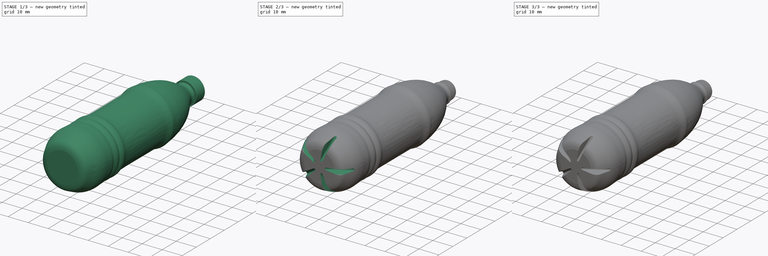
[diagram: build sequence overview — one tinted view per stage of 3, left to right]
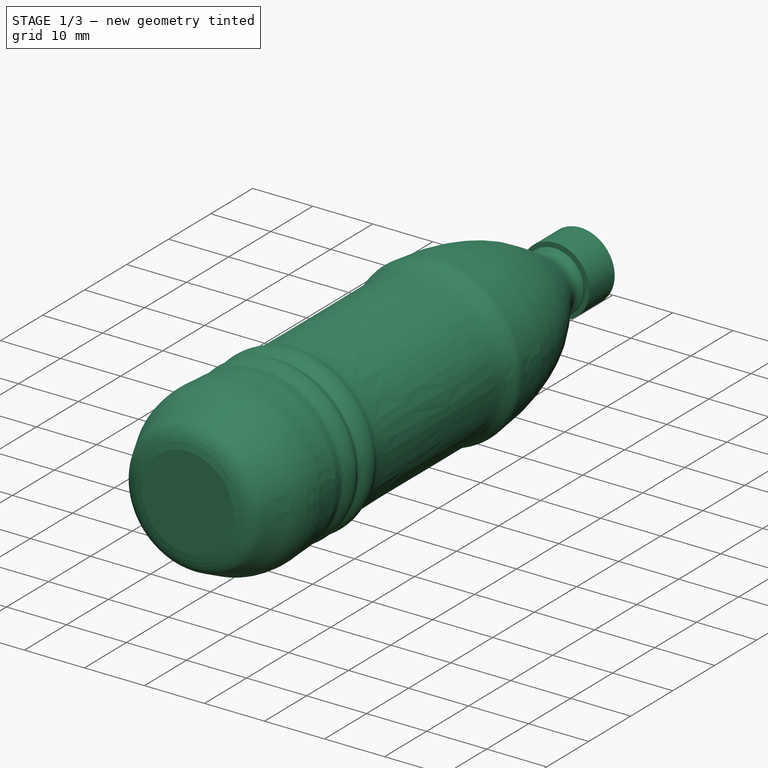
[diagram: stage 1 of 3 — iso view after this stage's code; geometry added in this stage tinted green]
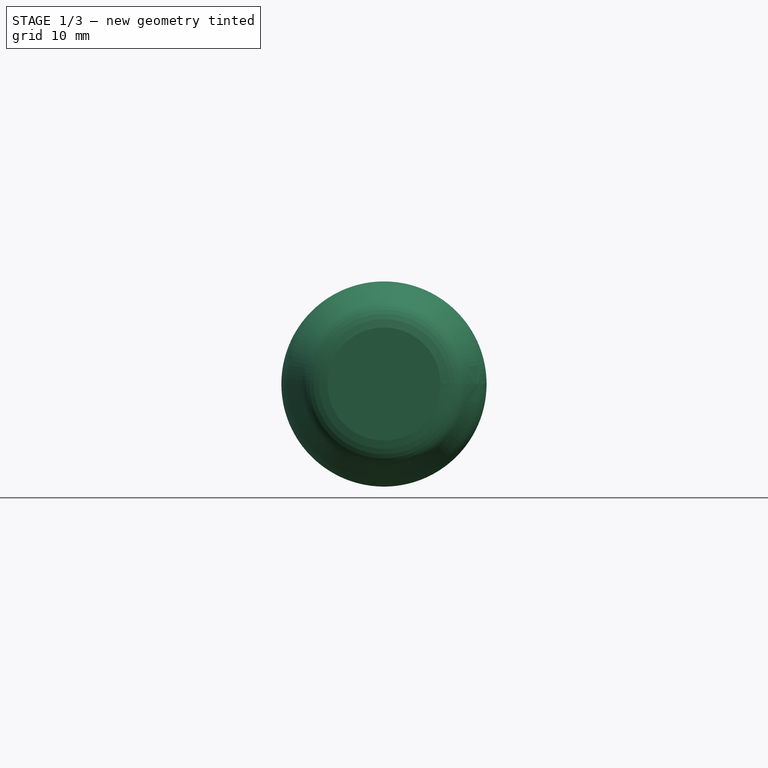
[diagram: stage 1 of 3 — front view after this stage's code; geometry added in this stage tinted green]
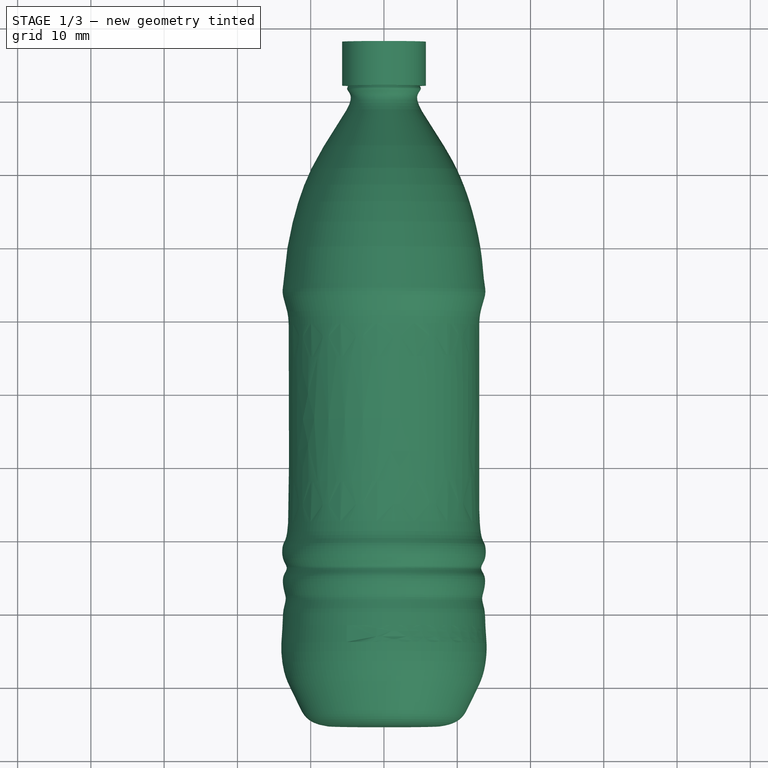
[diagram: stage 1 of 3 — top view after this stage's code; geometry added in this stage tinted green]
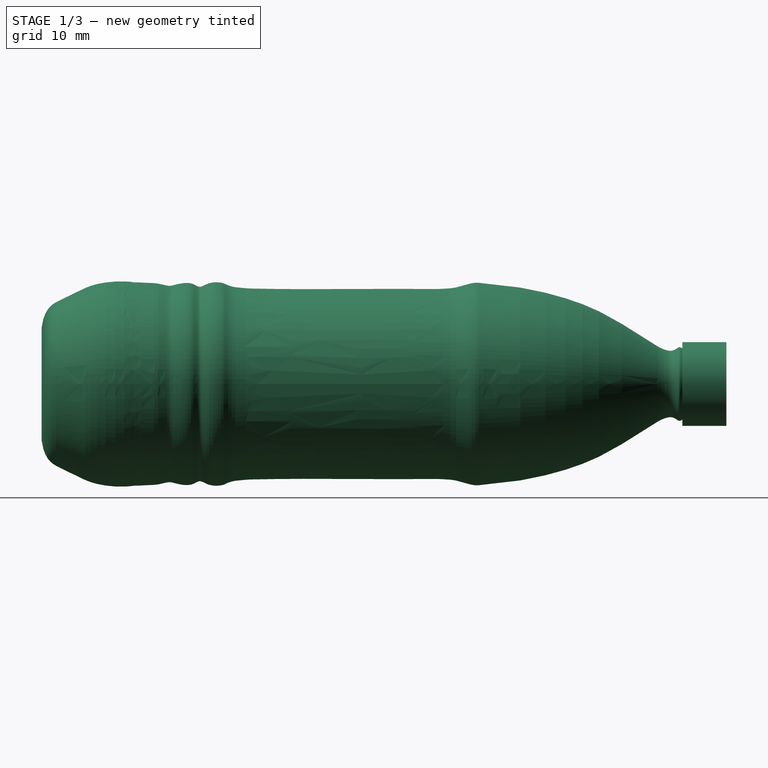
[diagram: stage 1 of 3 — right view after this stage's code; geometry added in this stage tinted green]
FCSTD DOCUMENT  (FreeCAD 0.21R33771 (Git))
Label: butilka2
License: All rights reserved
LicenseURL: http://en.wikipedia.org/wiki/All_rights_reserved
objects: Sketcher::SketchObject×4, PartDesign::Body×2, PartDesign::Revolution×1, PartDesign::Plane×1, PartDesign::SubtractivePipe×1, PartDesign::PolarPattern×1, Part::FeaturePython×1, Part::Cut×1, PartDesign::FeatureBase×1, PartDesign::Pocket×1
note: 17 computed .brp shape members not serialized (recipe doc carries the construction recipe); baked Part::Feature solids carry a one-line shape summary decoded from their .brp

FEATURE [Sketcher::SketchObject] Sketch001
  FullyConstrained = false
  MapMode = 5
  Support = -> [XY_Plane]
  sketch-geometry (65):
    g0: BSplineCurve PolesCount=32 KnotsCount=30 Degree=3 IsPeriodic=0
    g1: GeomPoint X=7.71037 Y=-45.4541 Z=0
    g2: LineSegment StartX=7.71037 StartY=-45.4541 StartZ=0 EndX=0 EndY=-45.4541 EndZ=0
    g3: LineSegment StartX=0 StartY=-45.4541 StartZ=0 EndX=0 EndY=46.9016 EndZ=0
    g4-g35: Circle x32 (B-spline internal-alignment scaffolding for g0; pole/knot coordinates omitted)
    g36-g64: GeomPoint x29 (B-spline internal-alignment scaffolding for g0; pole/knot coordinates omitted)
  constraints (73):
    c: PointOnObject(g0,g-2)
    c: InternalAlignment(g1,g0)
    c: Coincident(g2,g1)
    c: Horizontal(g2)
    c: Coincident(g3,g2)
    c: Coincident(g3,g0)
    c: Vertical(g3)
    c: PointOnObject(g0,g2)
    c: InternalAlignment(g4,g0)
    c: Weight(g4) = 1
    c: InternalAlignment(g5,g0)
    c: Equal(g5,g4)
    c: InternalAlignment(g6,g0)
    c: Equal(g6,g4)
    c: InternalAlignment(g7,g0)
    c: Equal(g7,g4)
    c: InternalAlignment(g8,g0)
    c: Equal(g8,g4)
    c: InternalAlignment(g9,g0)
    c: Equal(g9,g4)
    c: InternalAlignment(g10,g0)
    c: Equal(g10,g4)
    c: InternalAlignment(g11,g0)
    c: Equal(g11,g4)
    c: InternalAlignment(g12,g0)
    c: Equal(g12,g4)
    c: InternalAlignment(g13,g0)
    c: Equal(g13,g4)
    c: InternalAlignment(g14,g0)
    c: Equal(g14,g4)
    c: InternalAlignment(g15,g0)
    c: Equal(g15,g4)
    c: InternalAlignment(g16,g0)
    c: Equal(g16,g4)
    c: InternalAlignment(g17,g0)
    c: Equal(g17,g4)
    c: InternalAlignment(g18,g0)
    c: Equal(g18,g4)
    c: InternalAlignment(g19,g0)
    c: Equal(g19,g4)
    c: InternalAlignment(g20,g0)
    c: Equal(g20,g4)
    c: InternalAlignment(g21,g0)
    c: Equal(g21,g4)
    c: InternalAlignment(g22,g0)
    c: Equal(g22,g4)
    c: InternalAlignment(g23,g0)
    c: Equal(g23,g4)
    c: InternalAlignment(g24,g0)
    c: Equal(g24,g4)
    c: InternalAlignment(g25,g0)
    c: Equal(g25,g4)
    c: InternalAlignment(g26,g0)
    c: Equal(g26,g4)
    c: InternalAlignment(g27,g0)
    c: Equal(g27,g4)
    c: InternalAlignment(g28,g0)
    c: Equal(g28,g4)
    c: InternalAlignment(g29,g0)
    c: Equal(g29,g4)
    c: InternalAlignment(g30,g0)
    c: Equal(g30,g4)
    c: InternalAlignment(g31,g0)
    c: Equal(g31,g4)
    c: InternalAlignment(g32,g0)
    c: Equal(g32,g4)
    c: InternalAlignment(g33,g0)
    c: Equal(g33,g4)
    c: InternalAlignment(g34,g0)
    c: Equal(g34,g4)
    c: InternalAlignment(g35,g0)
    c: Equal(g35,g4)
    c: InternalAlignment(g36-g64 -> g0) x29
FEATURE [PartDesign::Revolution] Revolution
  Angle = 360
  Axis = (0,1,0)
  Base = (0,0,0)
  Profile = -> Sketch001
  ReferenceAxis = -> Sketch001 [V_Axis]
  Refine = true
  Reversed = true
FEATURE [PartDesign::Body] Body
  Group = -> [Sketch001,Revolution,Sketch,DatumPlane,Sketch002,SubtractivePipe,PolarPattern]
  Origin = -> Origin
  Tip = -> PolarPattern
FEATURE [Part::FeaturePython] ScrewDie  label="3/8inx6-ScrewDie"  # Fasteners workbench fastener (typed FeaturePython)
  Placement = pos=(0,42,0) rot=(1,0,0;1.5708rad)
  diameter = 12
  diameterCustom = 6
  invert = false
  leftHanded = false
  length = 6
  matchOuter = false
  offset = 0
  pitchCustom = 1
  thread = true
  type = 1
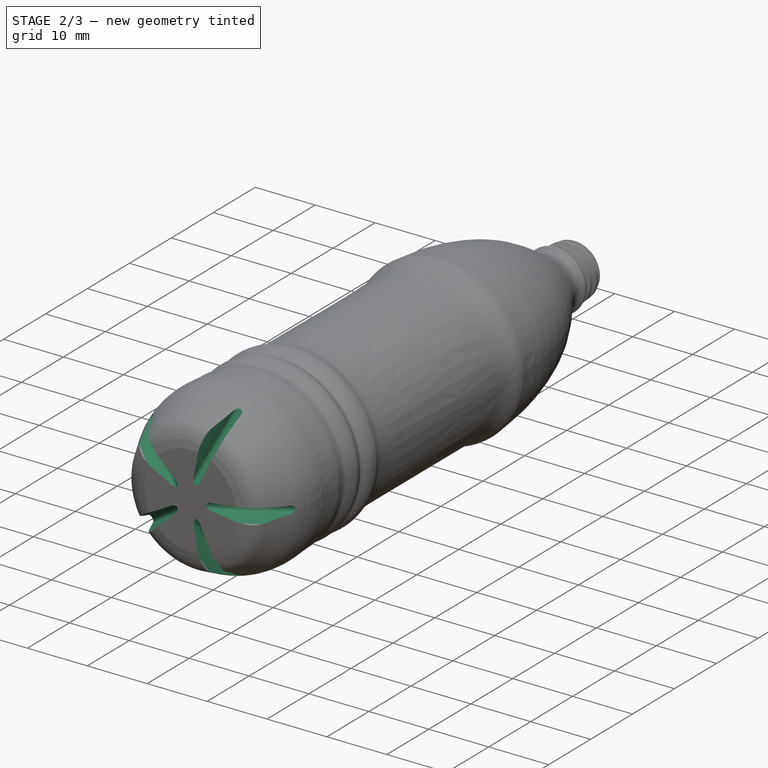
[diagram: stage 2 of 3 — iso view after this stage's code; geometry added in this stage tinted green]
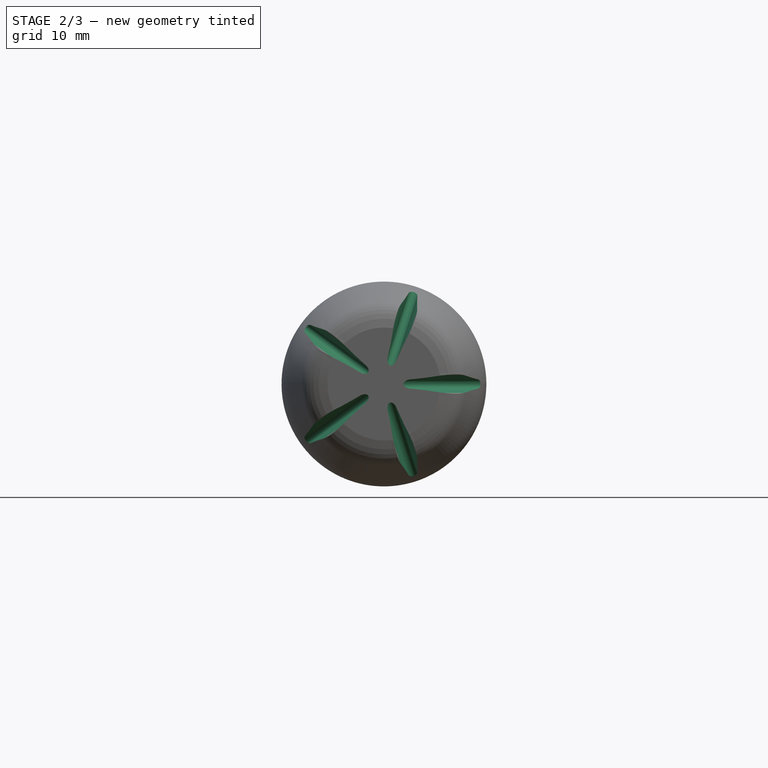
[diagram: stage 2 of 3 — front view after this stage's code; geometry added in this stage tinted green]
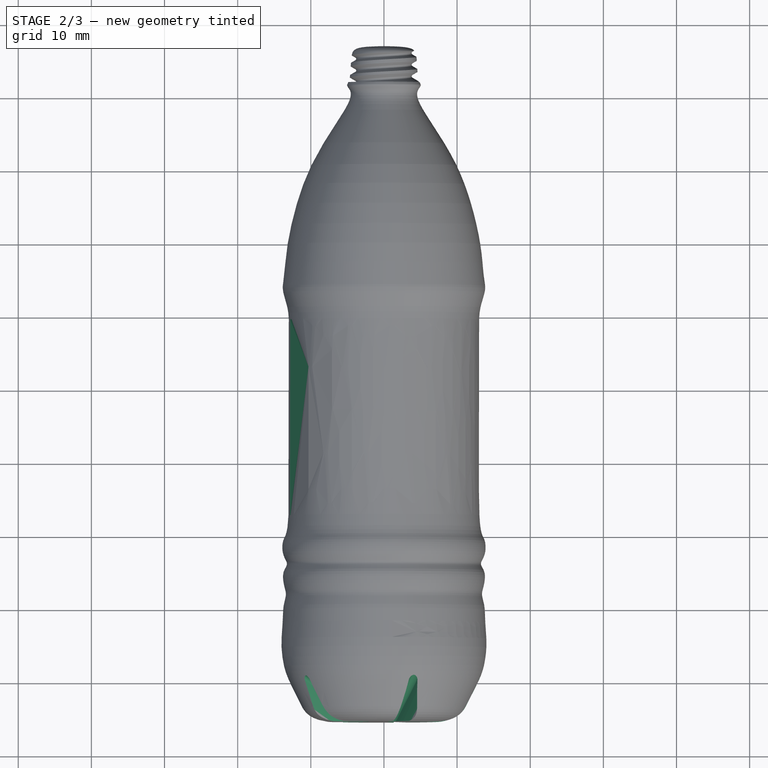
[diagram: stage 2 of 3 — top view after this stage's code; geometry added in this stage tinted green]
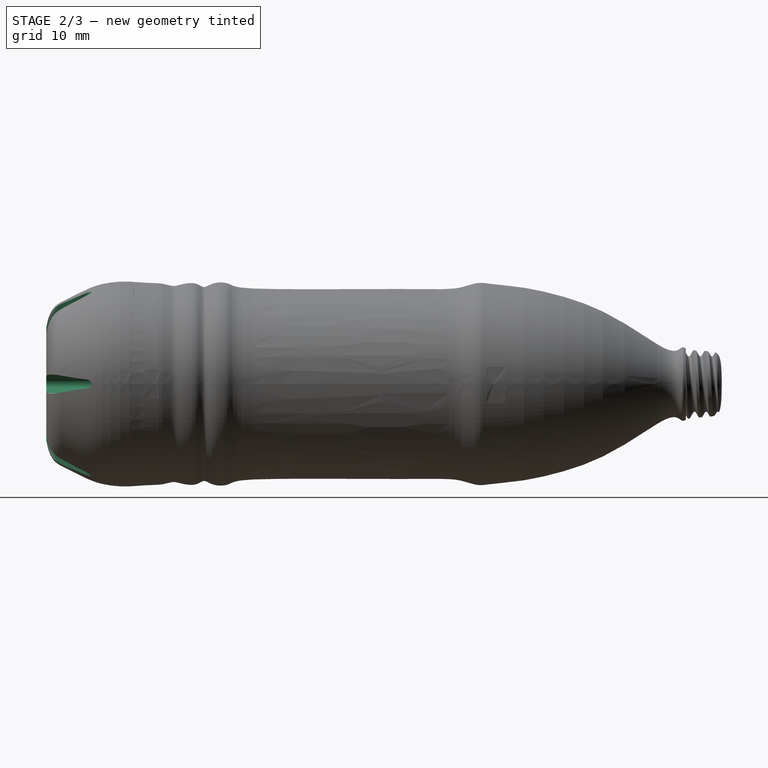
[diagram: stage 2 of 3 — right view after this stage's code; geometry added in this stage tinted green]
FEATURE [Sketcher::SketchObject] Sketch
  FullyConstrained = false
  MapMode = 5
  Support = -> [XY_Plane]
  sketch-geometry (1):
    g0: LineSegment StartX=1.25687 StartY=-46.293 StartZ=0 EndX=16.5175 EndY=-37.3198 EndZ=0
FEATURE [PartDesign::Plane] DatumPlane
  Length = 122.718
  MapMode = 45
  Placement = pos=(8.88716,-41.8064,0) rot=(0.374991,0.655508,0.655508;2.42407rad)
  ResizeMode = 0
  Support = -> [Sketch]
  Width = 64.6983
FEATURE [Sketcher::SketchObject] Sketch002
  FullyConstrained = false
  MapMode = 5
  Placement = pos=(8.88716,-41.8064,0) rot=(0.374991,0.655508,0.655508;2.42407rad)
  Support = -> [DatumPlane]
  sketch-geometry (8):
    g0: LineSegment StartX=-0.380816 StartY=0.615472 StartZ=0 EndX=-8.35399 EndY=4.41641 EndZ=0
    g1: LineSegment StartX=-8.35399 StartY=4.41641 StartZ=0 EndX=-8.35399 EndY=-4.41641 EndZ=0
    g2: LineSegment StartX=-8.35399 StartY=-4.41641 StartZ=0 EndX=-0.380816 EndY=-0.615472 EndZ=0
    g3: Circle CenterX=-5.34438 CenterY=0 CenterZ=0 NormalX=0 NormalY=0 NormalZ=1 AngleXU=0 Radius=5.34438
    g4: ArcOfCircle CenterX=-0.674221 CenterY=1e-16 CenterZ=0 NormalX=0 NormalY=0 NormalZ=1 AngleXU=0 Radius=0.681831 StartAngle=5.15724 EndAngle=7.40913
    g5: LineSegment StartX=-0.380816 StartY=0.615472 StartZ=0 EndX=-0.380816 EndY=-0.615472 EndZ=0
    g6: ArcOfCircle CenterX=2.55416 CenterY=17.0352 CenterZ=0 NormalX=0 NormalY=0 NormalZ=1 AngleXU=0 Radius=16.68 StartAngle=3.99957 EndAngle=4.53551
    g7: ArcOfCircle CenterX=2.55416 CenterY=-17.0352 CenterZ=0 NormalX=0 NormalY=0 NormalZ=1 AngleXU=0 Radius=16.68 StartAngle=1.74768 EndAngle=2.28361
  constraints (19):
    c: Coincident(g0,g1)
    c: Coincident(g1,g2)
    c: Equal(g0,g1)
    c: Equal(g0,g2)
    c: PointOnObject(g0,g3)
    c: PointOnObject(g1,g3)
    c: PointOnObject(g-1,g3)
    c: Vertical(g1)
    c: Tangent(g0,g4) = -1.5708
    c: Tangent(g2,g4) = -1.5708
    c: PointOnObject(g3,g-1)
    c: Coincident(g5,g0)
    c: Coincident(g5,g2)
    c: Coincident(g6,g0)
    c: Coincident(g6,g0)
    c: Coincident(g7,g2)
    c: Coincident(g7,g1)
    c: Radius(g6) = 16.68
    c: Equal(g7,g6)
FEATURE [PartDesign::SubtractivePipe] SubtractivePipe
  AuxilleryCurvelinear = true
  AuxillerySpineTangent = false
  BaseFeature = -> Revolution
  Binormal = (0,0,0)
  Mode = 0
  Profile = -> Sketch002
  Refine = true
  Spine = -> Sketch [Edge1]
  SpineTangent = false
  Transformation = 0
  Transition = 0
FEATURE [PartDesign::PolarPattern] PolarPattern
  Angle = 360
  Axis = -> Y_Axis
  BaseFeature = -> SubtractivePipe
  Occurrences = 5
  Originals = -> [SubtractivePipe]
  Refine = true
FEATURE [Part::Cut] Cut
  Base = -> Body
  Refine = true
  Tool = -> ScrewDie
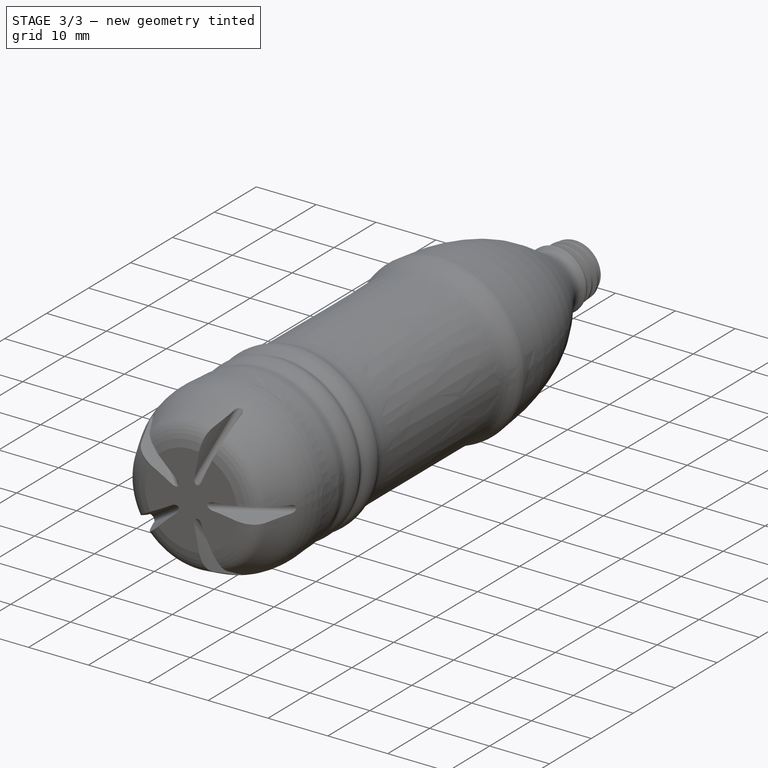
[diagram: stage 3 of 3 — iso view after this stage's code; geometry added in this stage tinted green]
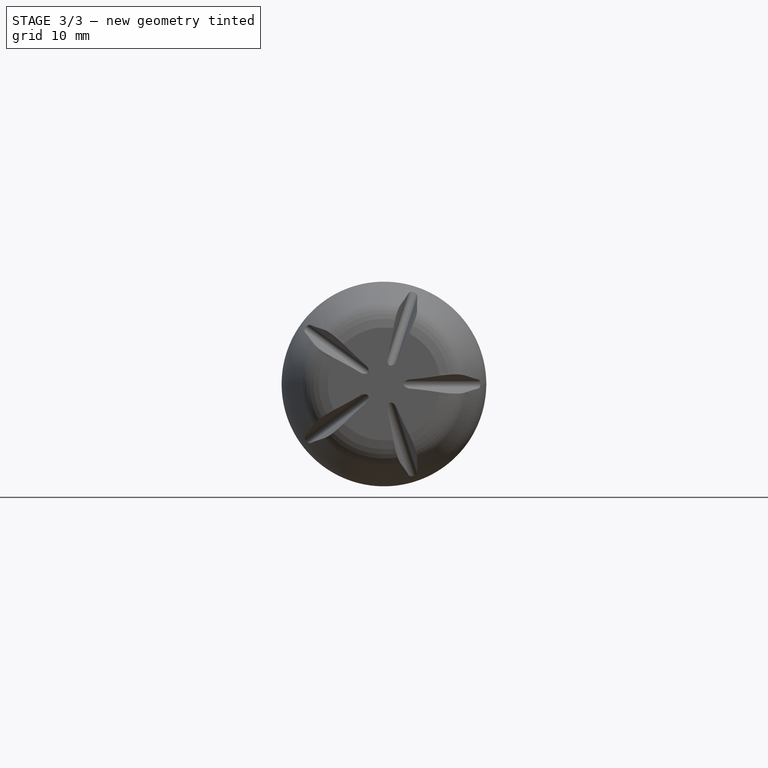
[diagram: stage 3 of 3 — front view after this stage's code; geometry added in this stage tinted green]
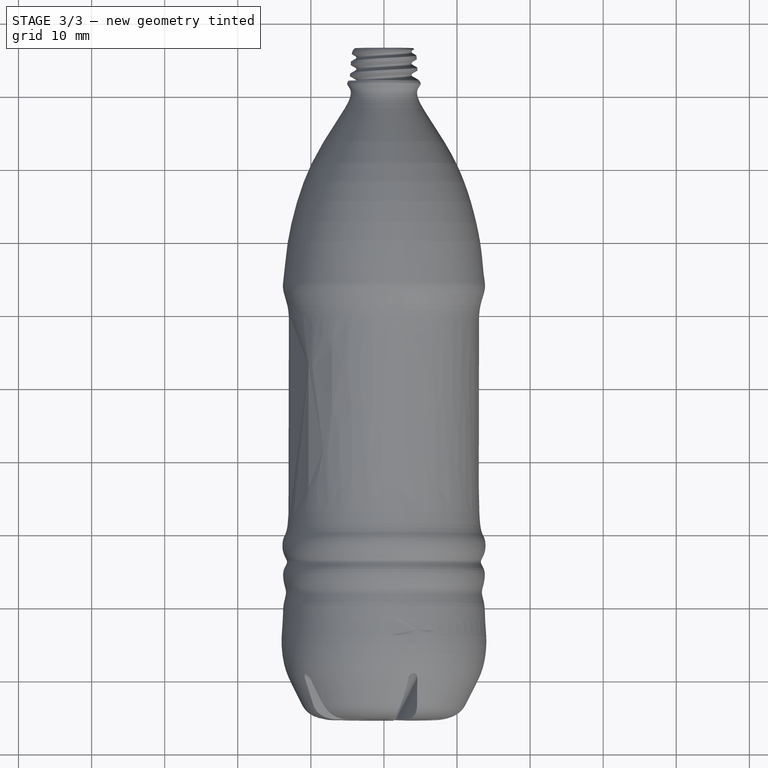
[diagram: stage 3 of 3 — top view after this stage's code; geometry added in this stage tinted green]
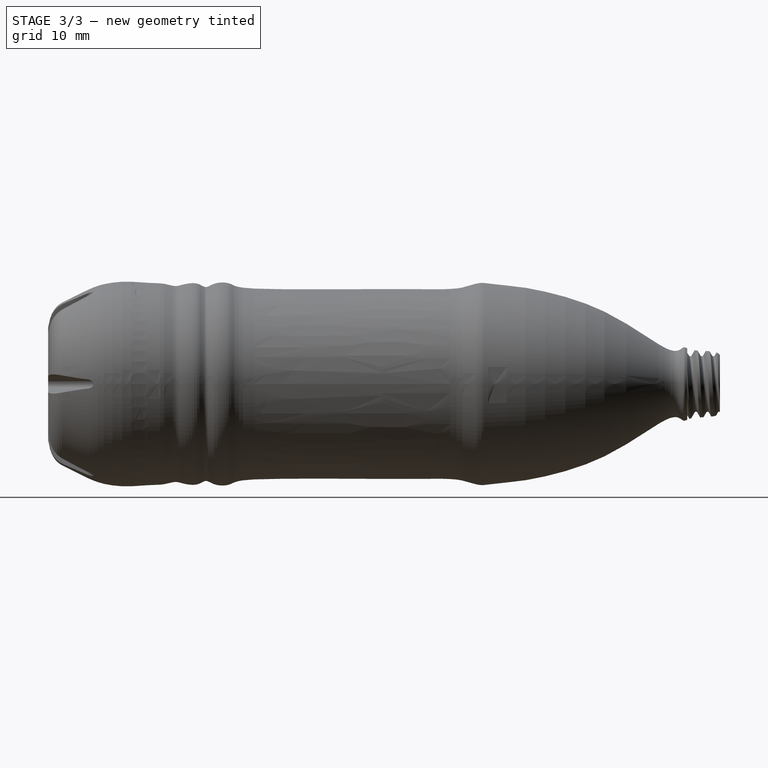
[diagram: stage 3 of 3 — right view after this stage's code; geometry added in this stage tinted green]
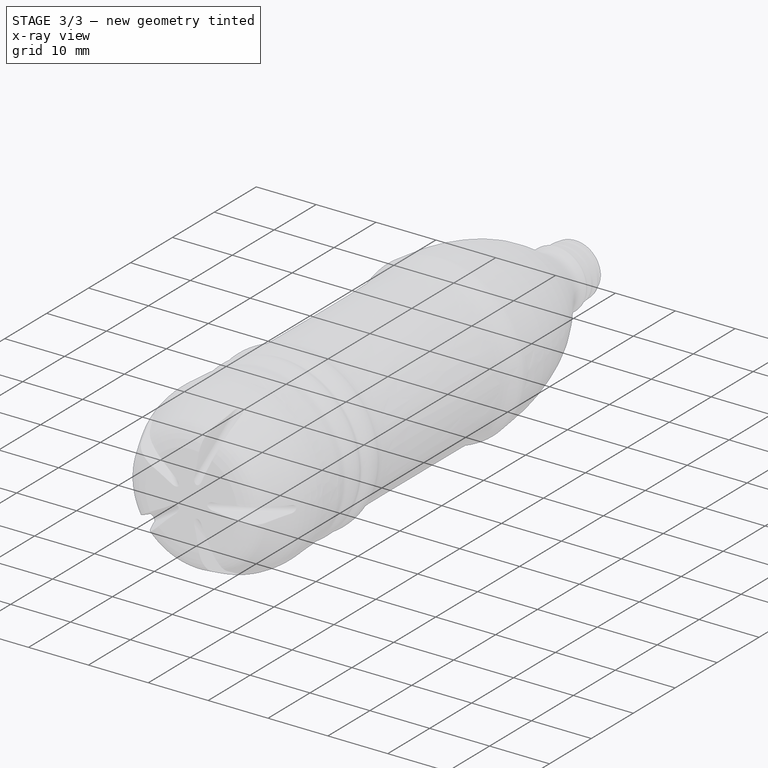
[diagram: stage 3 of 3 — x-ray composite at the iso view; earlier geometry ghosted, this stage's added geometry solid]
FEATURE [PartDesign::FeatureBase] BaseFeature
  BaseFeature = -> Cut
FEATURE [Sketcher::SketchObject] Sketch003
  FullyConstrained = false
  MapMode = 5
  Support = -> [XY_Plane001]
  sketch-geometry (5):
    g0: LineSegment StartX=-6.48005 StartY=50.532 StartZ=0 EndX=-6.48005 EndY=46.4581 EndZ=0
    g1: LineSegment StartX=-6.48005 StartY=46.4581 StartZ=0 EndX=6.48005 EndY=46.4581 EndZ=0
    g2: LineSegment StartX=6.48005 StartY=46.4581 StartZ=0 EndX=6.48005 EndY=50.532 EndZ=0
    g3: LineSegment StartX=6.48005 StartY=50.532 StartZ=0 EndX=-6.48005 EndY=50.532 EndZ=0
    g4: GeomPoint X=0 Y=48.495 Z=0
  constraints (10):
    c: Coincident(g0,g1)
    c: Coincident(g1,g2)
    c: Coincident(g2,g3)
    c: Coincident(g3,g0)
    c: Horizontal(g1)
    c: Horizontal(g3)
    c: Vertical(g0)
    c: Vertical(g2)
    c: Symmetric(g1,g0,g4)
    c: PointOnObject(g4,g-2)
FEATURE [PartDesign::Pocket] Pocket
  BaseFeature = -> BaseFeature
  Direction = (0,0,-1)
  Length = 5
  Length2 = 5
  Midplane = true
  Profile = -> Sketch003
  ReferenceAxis = -> Sketch003 [N_Axis]
  Refine = true
  Type = 1
FEATURE [PartDesign::Body] Body001
  BaseFeature = -> Cut
  Group = -> [BaseFeature,Sketch003,Pocket]
  Origin = -> Origin001
  Tip = -> Pocket
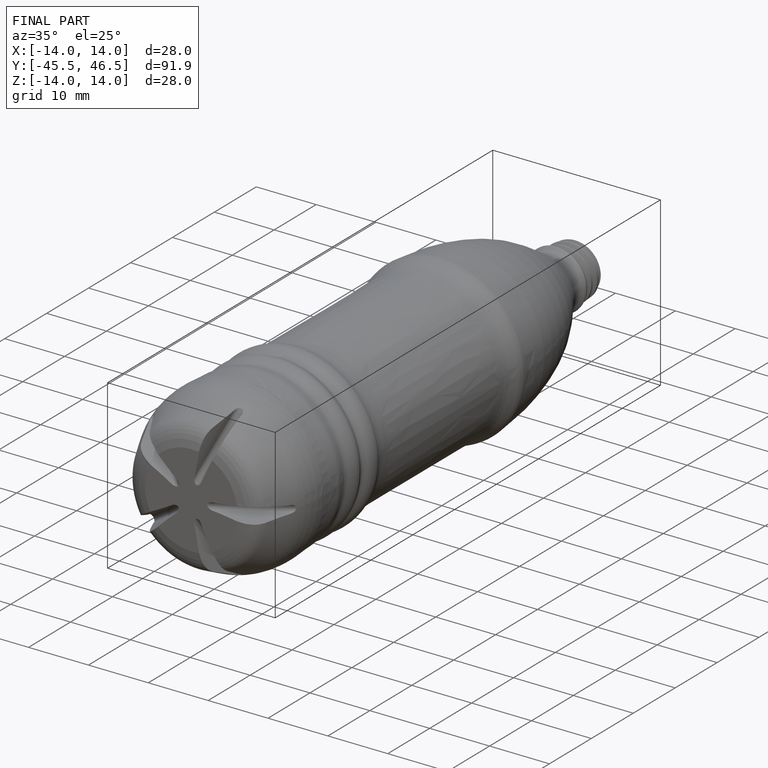
[diagram: finished part — iso view with bounding-box wireframe]
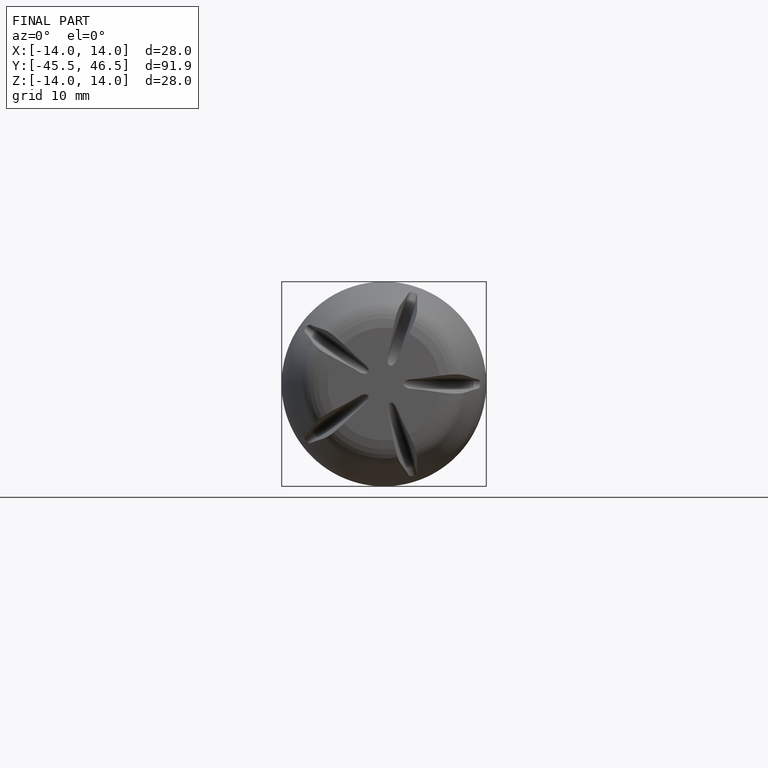
[diagram: finished part — front view with bounding-box wireframe]
